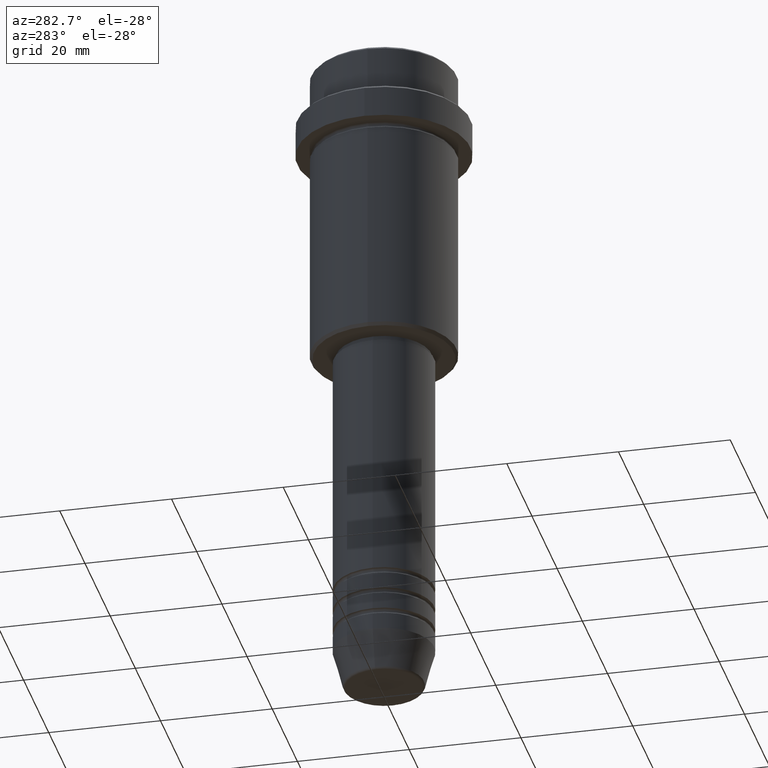
[diagram: clean part render]
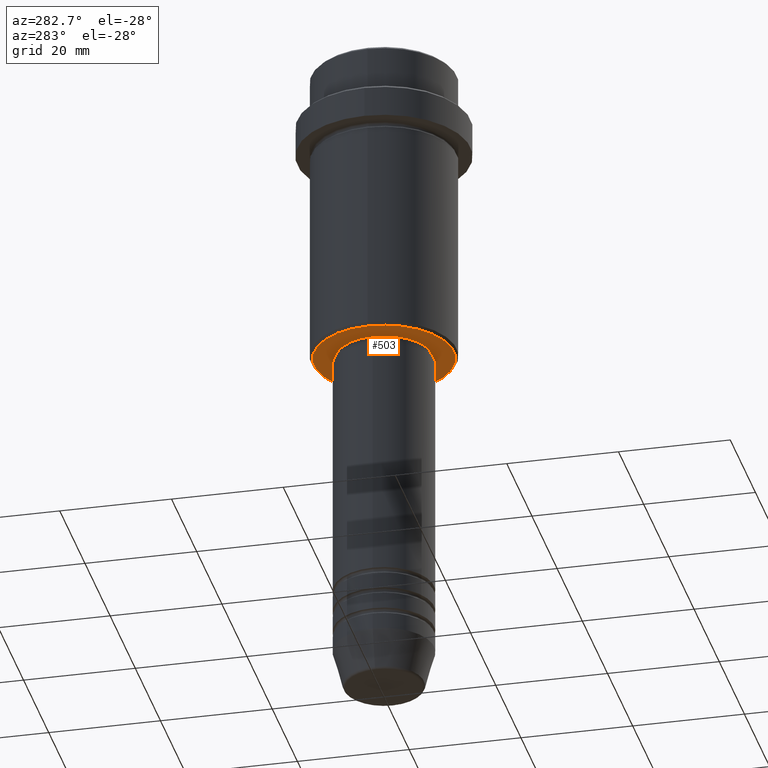
[diagram: same view with one face highlighted and labeled with its STEP entity id]
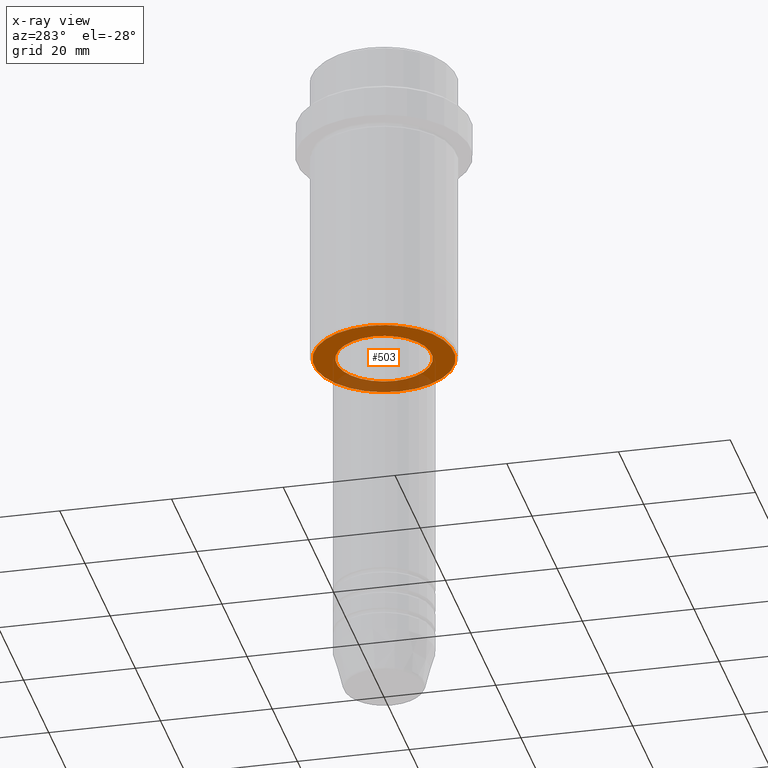
[diagram: x-ray of the same camera — body ghosted, the highlighted face saturated]
A machine part, auxiliary view. The second image highlights one B-rep face of the part: STEP entity #503.
The next image is the same camera in x-ray: the body ghosted, the highlighted face saturated — about 26% of this face is hidden behind the body in this view.
In plain terms, the highlighted planar face has unit normal (0, 0, -1).
Its self-contained STEP definition (entity closure, byte-faithful):
#68 = CARTESIAN_POINT ( 'NONE',  ( -8.499999999999994671, 1.040949779275249745E-15, -55.00000000000000711 ) ) ;
#70 = DIRECTION ( 'NONE',  ( 0.000000000000000000, 0.000000000000000000, -1.000000000000000000 ) ) ;
#72 = VERTEX_POINT ( 'NONE', #68 ) ;
#85 = CARTESIAN_POINT ( 'NONE',  ( -12.49999999999998401, 1.561424668912874125E-15, -55.00000000000000711 ) ) ;
#93 = DIRECTION ( 'NONE',  ( -0.000000000000000000, -0.000000000000000000, 1.000000000000000000 ) ) ;
#170 = CARTESIAN_POINT ( 'NONE',  ( 0.000000000000000000, 13.00000000000000000, -55.00000000000000711 ) ) ;
#192 = VERTEX_POINT ( 'NONE', #85 ) ;
#200 = CIRCLE ( 'NONE', #378, 12.49999999999998401 ) ;
#230 = DIRECTION ( 'NONE',  ( 0.000000000000000000, 0.000000000000000000, -1.000000000000000000 ) ) ;
#281 = EDGE_CURVE ( 'NONE', #752, #72, #1052, .T. ) ;
#284 = ORIENTED_EDGE ( 'NONE', *, *, #989, .T. ) ;
#369 = VERTEX_POINT ( 'NONE', #456 ) ;
#378 = AXIS2_PLACEMENT_3D ( 'NONE', #439, #907, #877 ) ;
#385 = AXIS2_PLACEMENT_3D ( 'NONE', #434, #230, #1102 ) ;
#401 = FACE_BOUND ( 'NONE', #904, .T. ) ;
#434 = CARTESIAN_POINT ( 'NONE',  ( 0.000000000000000000, 0.000000000000000000, -55.00000000000000711 ) ) ;
#439 = CARTESIAN_POINT ( 'NONE',  ( 0.000000000000000000, 0.000000000000000000, -55.00000000000000711 ) ) ;
#456 = CARTESIAN_POINT ( 'NONE',  ( 12.49999999999998401, 0.000000000000000000, -55.00000000000000711 ) ) ;
#503 = ADVANCED_FACE ( 'NONE', ( #1272, #401 ), #1287, .T. ) ;
#517 = AXIS2_PLACEMENT_3D ( 'NONE', #170, #70, #721 ) ;
#582 = CIRCLE ( 'NONE', #385, 12.49999999999998401 ) ;
#613 = CIRCLE ( 'NONE', #1321, 8.499999999999994671 ) ;
#711 = EDGE_CURVE ( 'NONE', #369, #192, #582, .T. ) ;
#721 = DIRECTION ( 'NONE',  ( -1.000000000000000000, 0.000000000000000000, -0.000000000000000000 ) ) ;
#746 = DIRECTION ( 'NONE',  ( 1.000000000000000000, 0.000000000000000000, 0.000000000000000000 ) ) ;
#752 = VERTEX_POINT ( 'NONE', #1396 ) ;
#784 = ORIENTED_EDGE ( 'NONE', *, *, #281, .T. ) ;
#877 = DIRECTION ( 'NONE',  ( -1.000000000000000000, 0.000000000000000000, 0.000000000000000000 ) ) ;
#904 = EDGE_LOOP ( 'NONE', ( #784, #1332 ) ) ;
#907 = DIRECTION ( 'NONE',  ( 0.000000000000000000, 0.000000000000000000, -1.000000000000000000 ) ) ;
#918 = EDGE_LOOP ( 'NONE', ( #1288, #284 ) ) ;
#989 = EDGE_CURVE ( 'NONE', #192, #369, #200, .T. ) ;
#1052 = CIRCLE ( 'NONE', #1322, 8.499999999999994671 ) ;
#1083 = CARTESIAN_POINT ( 'NONE',  ( 0.000000000000000000, 0.000000000000000000, -55.00000000000000711 ) ) ;
#1089 = DIRECTION ( 'NONE',  ( -0.000000000000000000, -0.000000000000000000, 1.000000000000000000 ) ) ;
#1092 = DIRECTION ( 'NONE',  ( 1.000000000000000000, 0.000000000000000000, 0.000000000000000000 ) ) ;
#1102 = DIRECTION ( 'NONE',  ( -1.000000000000000000, 0.000000000000000000, 0.000000000000000000 ) ) ;
#1272 = FACE_OUTER_BOUND ( 'NONE', #918, .T. ) ;
#1287 = PLANE ( 'NONE',  #517 ) ;
#1288 = ORIENTED_EDGE ( 'NONE', *, *, #711, .T. ) ;
#1291 = CARTESIAN_POINT ( 'NONE',  ( 0.000000000000000000, 0.000000000000000000, -55.00000000000000711 ) ) ;
#1321 = AXIS2_PLACEMENT_3D ( 'NONE', #1291, #1089, #746 ) ;
#1322 = AXIS2_PLACEMENT_3D ( 'NONE', #1083, #93, #1092 ) ;
#1332 = ORIENTED_EDGE ( 'NONE', *, *, #1333, .T. ) ;
#1333 = EDGE_CURVE ( 'NONE', #72, #752, #613, .T. ) ;
#1396 = CARTESIAN_POINT ( 'NONE',  ( 8.499999999999994671, 0.000000000000000000, -55.00000000000000711 ) ) ;